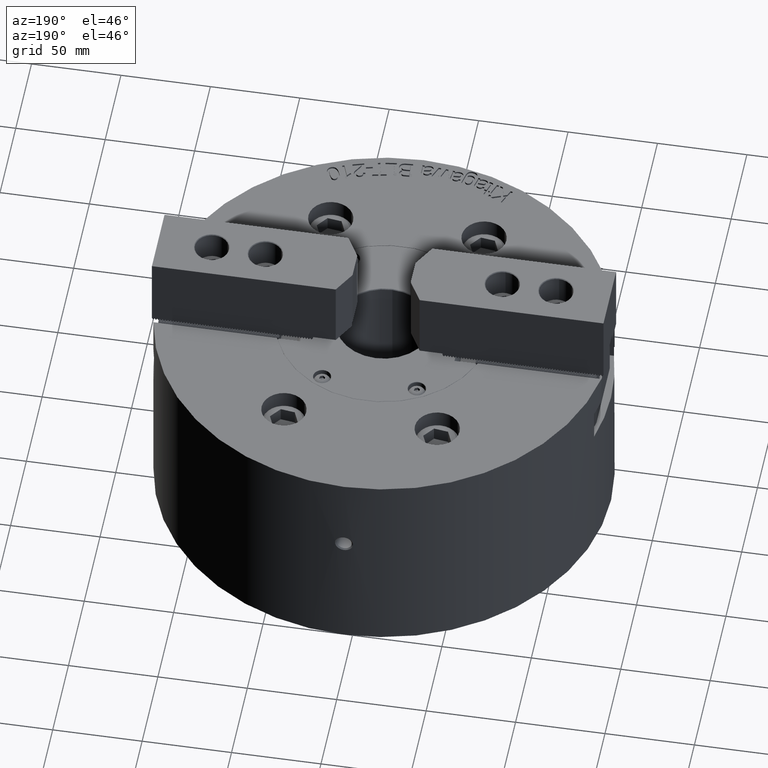
[diagram: clean part render]
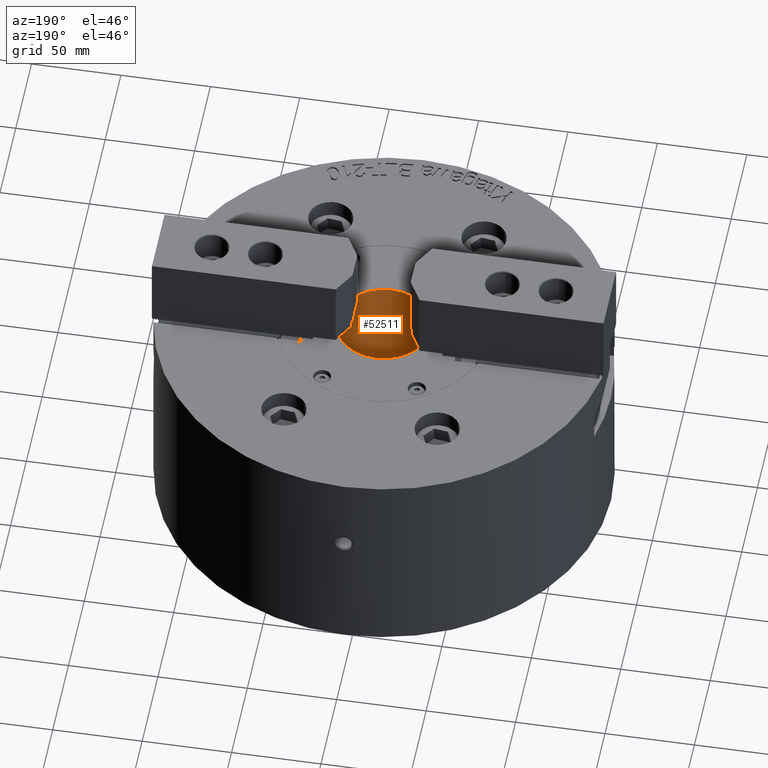
[diagram: same view with one face highlighted and labeled with its STEP entity id]
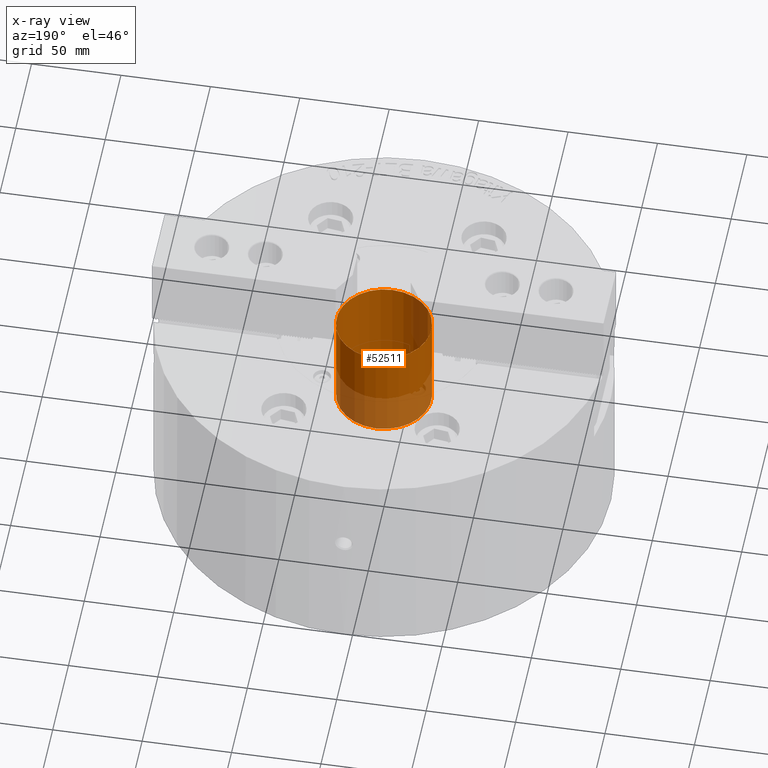
[diagram: x-ray of the same camera — body ghosted, the highlighted face saturated]
A machine part, auxiliary view. The second image highlights one B-rep face of the part: STEP entity #52511.
The next image is the same camera in x-ray: the body ghosted, the highlighted face saturated — about 31% of this face is hidden behind the body in this view.
In plain terms, the highlighted cylindrical surface (bore or boss wall) has radius 26.5 mm, axis along (0, 0, -1).
Its self-contained STEP definition (entity closure, byte-faithful):
#1200=CYLINDRICAL_SURFACE('',#56035,26.5);
#1979=CIRCLE('',#56036,26.5);
#1980=CIRCLE('',#56037,26.5);
#17134=ORIENTED_EDGE('',*,*,#25172,.T.);
#17135=ORIENTED_EDGE('',*,*,#25173,.T.);
#25172=EDGE_CURVE('',#30100,#30100,#1979,.T.);
#25173=EDGE_CURVE('',#30101,#30101,#1980,.T.);
#30100=VERTEX_POINT('',#86722);
#30101=VERTEX_POINT('',#86724);
#45576=EDGE_LOOP('',(#17134));
#45577=EDGE_LOOP('',(#17135));
#48267=FACE_BOUND('',#45576,.T.);
#48268=FACE_BOUND('',#45577,.T.);
#52511=ADVANCED_FACE('',(#48267,#48268),#1200,.F.);
#56035=AXIS2_PLACEMENT_3D('',#86720,#69287,#69288);
#56036=AXIS2_PLACEMENT_3D('',#86721,#69289,#69290);
#56037=AXIS2_PLACEMENT_3D('',#86723,#69291,#69292);
#69287=DIRECTION('',(0.,0.,-1.));
#69288=DIRECTION('',(0.,-1.,0.));
#69289=DIRECTION('',(0.,0.,-1.));
#69290=DIRECTION('',(0.,-1.,0.));
#69291=DIRECTION('',(0.,0.,1.));
#69292=DIRECTION('',(0.,1.,0.));
#86720=CARTESIAN_POINT('',(-3.28006935848557E-14,0.,-57.));
#86721=CARTESIAN_POINT('',(-3.28006935848557E-14,0.,-56.1339745962156));
#86722=CARTESIAN_POINT('',(-3.28006935848557E-14,-26.5,-56.1339745962156));
#86723=CARTESIAN_POINT('',(-3.28006935848557E-14,0.,-0.399999999999998));
#86724=CARTESIAN_POINT('',(-3.28006935848557E-14,26.5,-0.399999999999998));